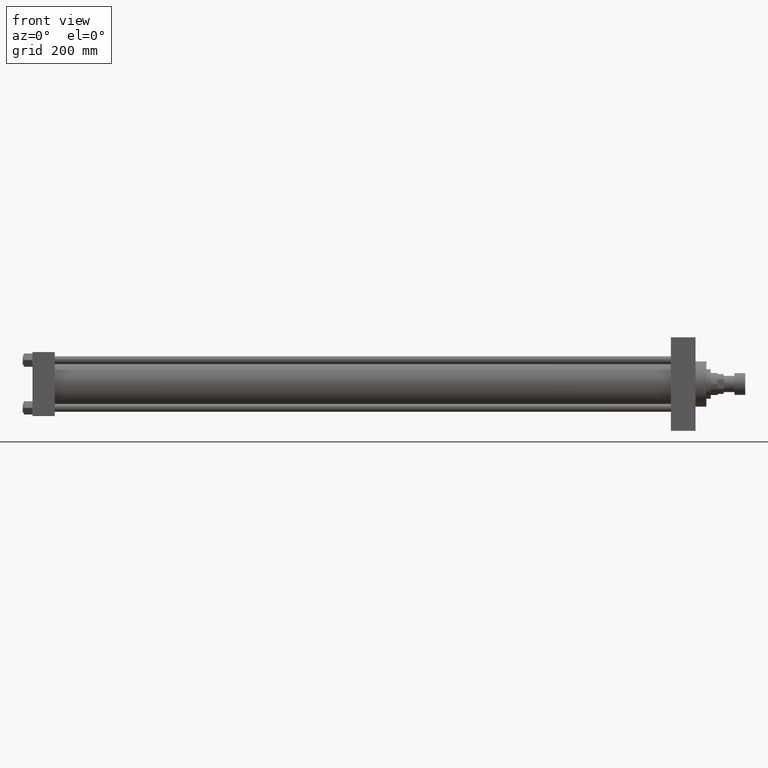
[diagram: clean part render]
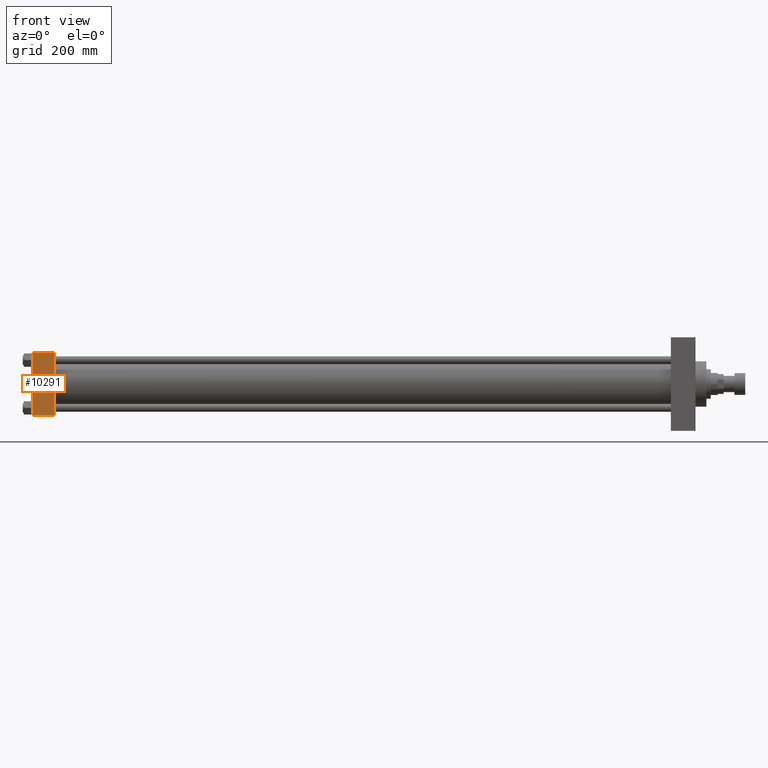
[diagram: same view with one face highlighted and labeled with its STEP entity id]
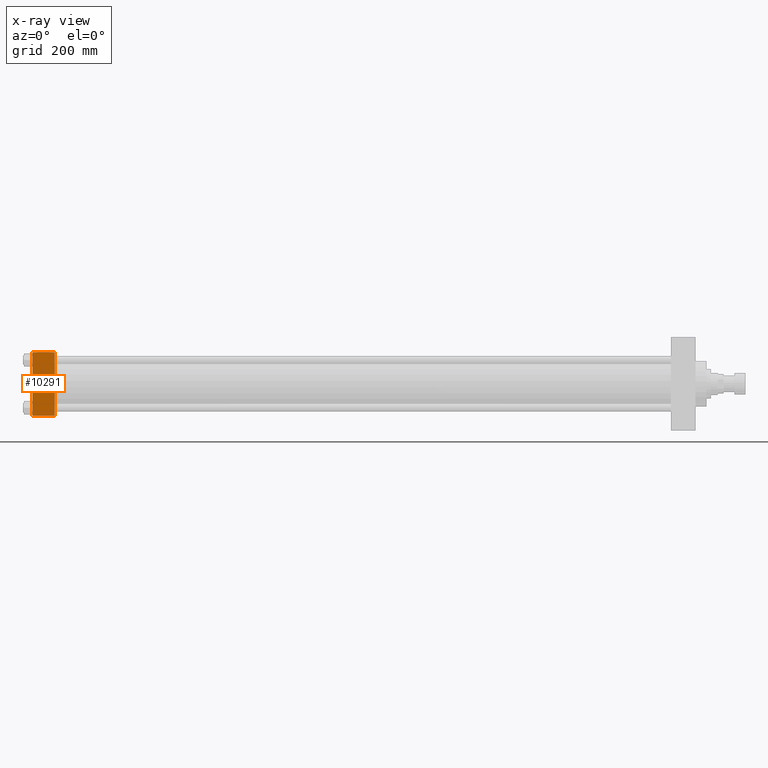
[diagram: x-ray of the same camera — body ghosted, the highlighted face saturated]
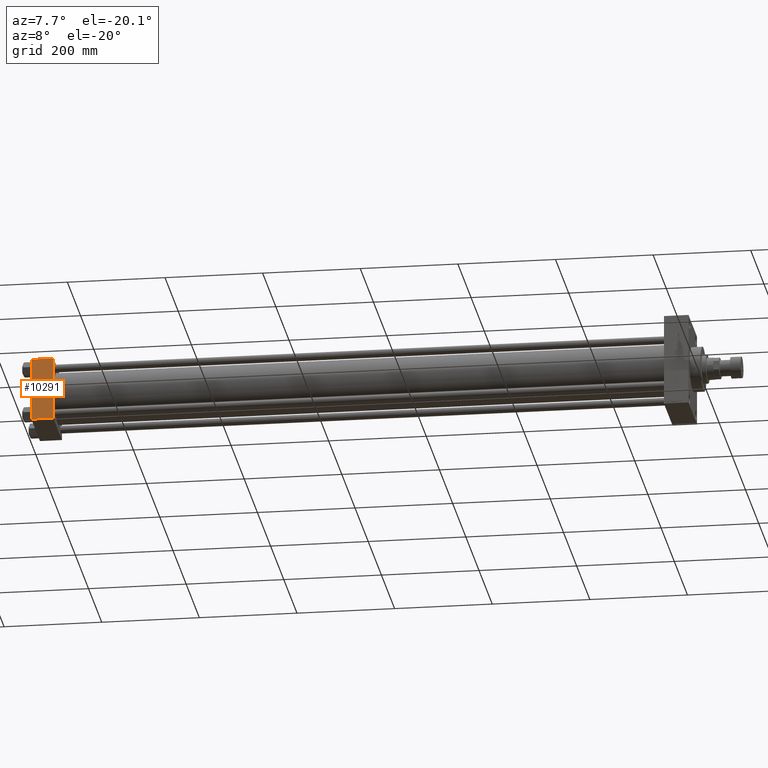
[diagram: same view with one face highlighted and labeled with its STEP entity id]
A machine part, front view. The second image highlights one B-rep face of the part: STEP entity #10291.
The next image is the same camera in x-ray: the body ghosted, the highlighted face saturated — about 0% of this face is hidden behind the body in this view.
A second angle (auxiliary view) of the same face is appended — the face is thin or edge-on in the first view.
In plain terms, the highlighted planar face has unit normal (0, 1, 0).
Its self-contained STEP definition (entity closure, byte-faithful):
#842 = ORIENTED_EDGE ( 'NONE', *, *, #17635, .T. ) ;
#1414 = EDGE_CURVE ( 'NONE', #14107, #18367, #45060, .T. ) ;
#2405 = VERTEX_POINT ( 'NONE', #20182 ) ;
#2761 = CARTESIAN_POINT ( 'NONE',  ( 0.000000000000000000, -65.00000000000000000, 64.50000000000000000 ) ) ;
#4611 = ORIENTED_EDGE ( 'NONE', *, *, #7874, .F. ) ;
#7874 = EDGE_CURVE ( 'NONE', #29801, #2405, #17012, .T. ) ;
#9053 = CARTESIAN_POINT ( 'NONE',  ( 45.00000000000000000, -65.00000000000000000, 64.50000000000000000 ) ) ;
#9511 = ORIENTED_EDGE ( 'NONE', *, *, #1414, .T. ) ;
#10291 = ADVANCED_FACE ( 'NONE', ( #12963 ), #30998, .F. ) ;
#11768 = AXIS2_PLACEMENT_3D ( 'NONE', #23456, #12487, #27350 ) ;
#12487 = DIRECTION ( 'NONE',  ( -0.000000000000000000, 1.000000000000000000, 0.000000000000000000 ) ) ;
#12853 = EDGE_CURVE ( 'NONE', #29801, #14107, #38580, .T. ) ;
#12963 = FACE_OUTER_BOUND ( 'NONE', #27752, .T. ) ;
#14107 = VERTEX_POINT ( 'NONE', #2761 ) ;
#15837 = VECTOR ( 'NONE', #40017, 1000.000000000000000 ) ;
#17012 = LINE ( 'NONE', #42104, #33474 ) ;
#17139 = CARTESIAN_POINT ( 'NONE',  ( 0.000000000000000000, -65.00000000000000000, -64.49999999999991473 ) ) ;
#17635 = EDGE_CURVE ( 'NONE', #18367, #2405, #25181, .T. ) ;
#18367 = VERTEX_POINT ( 'NONE', #17139 ) ;
#19856 = CARTESIAN_POINT ( 'NONE',  ( 45.00000000000000000, -65.00000000000000000, 64.50000000000000000 ) ) ;
#20182 = CARTESIAN_POINT ( 'NONE',  ( 45.00000000000000000, -65.00000000000000000, -64.49999999999991473 ) ) ;
#23456 = CARTESIAN_POINT ( 'NONE',  ( 45.00000000000000000, -65.00000000000000000, 65.00000000000000000 ) ) ;
#25181 = LINE ( 'NONE', #28824, #15837 ) ;
#27350 = DIRECTION ( 'NONE',  ( 0.000000000000000000, -0.000000000000000000, 1.000000000000000000 ) ) ;
#27752 = EDGE_LOOP ( 'NONE', ( #9511, #842, #4611, #30892 ) ) ;
#28824 = CARTESIAN_POINT ( 'NONE',  ( 45.00000000000000000, -65.00000000000000000, -64.49999999999991473 ) ) ;
#29330 = DIRECTION ( 'NONE',  ( 0.000000000000000000, 0.000000000000000000, -1.000000000000000000 ) ) ;
#29343 = VECTOR ( 'NONE', #29330, 1000.000000000000000 ) ;
#29801 = VERTEX_POINT ( 'NONE', #9053 ) ;
#30077 = DIRECTION ( 'NONE',  ( -1.000000000000000000, 0.000000000000000000, 0.000000000000000000 ) ) ;
#30892 = ORIENTED_EDGE ( 'NONE', *, *, #12853, .T. ) ;
#30998 = PLANE ( 'NONE',  #11768 ) ;
#33474 = VECTOR ( 'NONE', #35277, 1000.000000000000000 ) ;
#35277 = DIRECTION ( 'NONE',  ( 0.000000000000000000, 0.000000000000000000, -1.000000000000000000 ) ) ;
#35893 = VECTOR ( 'NONE', #30077, 1000.000000000000000 ) ;
#36388 = CARTESIAN_POINT ( 'NONE',  ( 0.000000000000000000, -65.00000000000000000, 65.00000000000000000 ) ) ;
#38580 = LINE ( 'NONE', #19856, #35893 ) ;
#40017 = DIRECTION ( 'NONE',  ( 1.000000000000000000, 0.000000000000000000, 0.000000000000000000 ) ) ;
#42104 = CARTESIAN_POINT ( 'NONE',  ( 45.00000000000000000, -65.00000000000000000, 65.00000000000000000 ) ) ;
#45060 = LINE ( 'NONE', #36388, #29343 ) ;